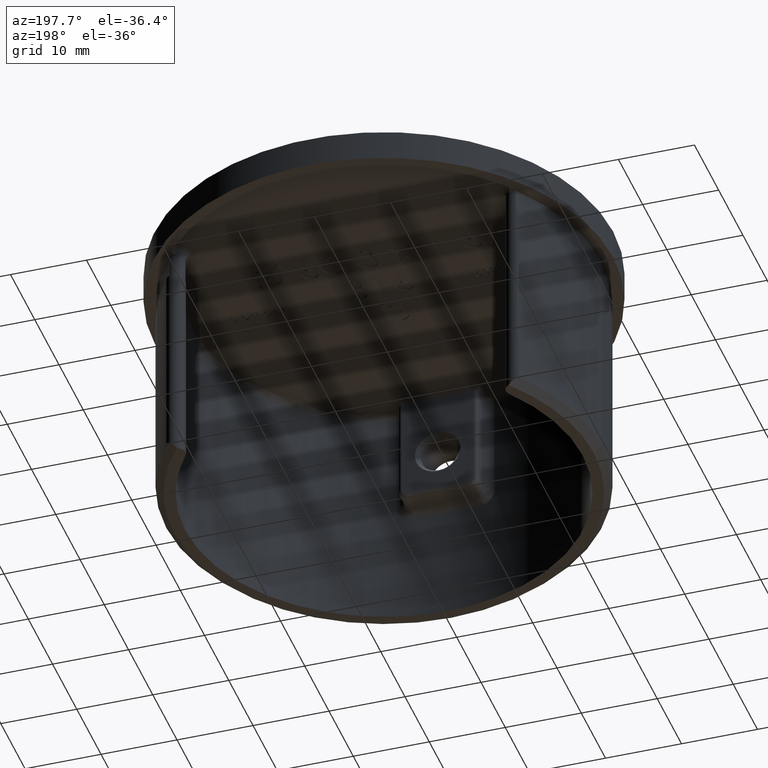
[diagram: clean part render]
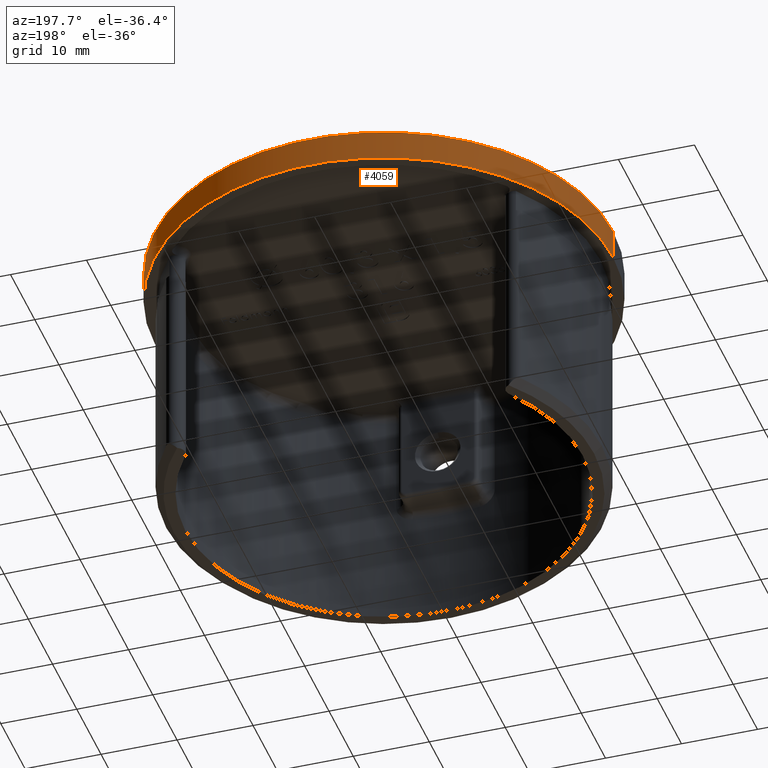
[diagram: same view with one face highlighted and labeled with its STEP entity id]
A machine part, auxiliary view. The second image highlights one B-rep face of the part: STEP entity #4059.
In plain terms, the highlighted cylindrical surface (partial cylindrical patch) has radius 30.15 mm, axis along (-0, -0, -1).
Its self-contained STEP definition (entity closure, byte-faithful):
#627 = EDGE_CURVE ( 'NONE', #13377, #5785, #5581, .T. ) ;
#941 = VERTEX_POINT ( 'NONE', #2209 ) ;
#2209 = CARTESIAN_POINT ( 'NONE',  ( 30.14999999999999858, 3.692310099429270397E-15, 0.000000000000000000 ) ) ;
#3050 = CYLINDRICAL_SURFACE ( 'NONE', #8650, 30.14999999999999858 ) ;
#3496 = CARTESIAN_POINT ( 'NONE',  ( -30.14999999999999858, 0.000000000000000000, 4.000000000000000000 ) ) ;
#3553 = EDGE_CURVE ( 'NONE', #15630, #941, #6722, .T. ) ;
#3639 = CIRCLE ( 'NONE', #12667, 30.14999999999999858 ) ;
#4059 = ADVANCED_FACE ( 'NONE', ( #25355 ), #3050, .T. ) ;
#4258 = VECTOR ( 'NONE', #18877, 1000.000000000000000 ) ;
#4289 = CARTESIAN_POINT ( 'NONE',  ( -30.14999999999999858, 0.000000000000000000, 0.000000000000000000 ) ) ;
#5203 = CARTESIAN_POINT ( 'NONE',  ( 30.14999999999999858, 3.692310099429270397E-15, 4.000000000000000000 ) ) ;
#5581 = LINE ( 'NONE', #14531, #15955 ) ;
#5785 = VERTEX_POINT ( 'NONE', #4289 ) ;
#6160 = CARTESIAN_POINT ( 'NONE',  ( 30.14999999999999858, 3.692310099429270397E-15, 4.000000000000000000 ) ) ;
#6722 = LINE ( 'NONE', #5203, #4258 ) ;
#7071 = AXIS2_PLACEMENT_3D ( 'NONE', #18100, #10168, #16401 ) ;
#8650 = AXIS2_PLACEMENT_3D ( 'NONE', #16538, #20473, #8766 ) ;
#8766 = DIRECTION ( 'NONE',  ( -1.000000000000000000, 0.000000000000000000, 0.000000000000000000 ) ) ;
#9542 = DIRECTION ( 'NONE',  ( 1.000000000000000000, 0.000000000000000000, 0.000000000000000000 ) ) ;
#10168 = DIRECTION ( 'NONE',  ( 0.000000000000000000, 0.000000000000000000, 1.000000000000000000 ) ) ;
#11350 = ORIENTED_EDGE ( 'NONE', *, *, #24509, .T. ) ;
#12479 = DIRECTION ( 'NONE',  ( -0.000000000000000000, -0.000000000000000000, -1.000000000000000000 ) ) ;
#12667 = AXIS2_PLACEMENT_3D ( 'NONE', #21502, #17401, #9542 ) ;
#13377 = VERTEX_POINT ( 'NONE', #3496 ) ;
#14531 = CARTESIAN_POINT ( 'NONE',  ( -30.14999999999999858, 0.000000000000000000, 4.000000000000000000 ) ) ;
#15630 = VERTEX_POINT ( 'NONE', #6160 ) ;
#15955 = VECTOR ( 'NONE', #12479, 1000.000000000000000 ) ;
#16401 = DIRECTION ( 'NONE',  ( 1.000000000000000000, 0.000000000000000000, 0.000000000000000000 ) ) ;
#16538 = CARTESIAN_POINT ( 'NONE',  ( 0.000000000000000000, 0.000000000000000000, 4.000000000000000000 ) ) ;
#16657 = ORIENTED_EDGE ( 'NONE', *, *, #3553, .T. ) ;
#16802 = CIRCLE ( 'NONE', #7071, 30.14999999999999858 ) ;
#17401 = DIRECTION ( 'NONE',  ( 0.000000000000000000, 0.000000000000000000, 1.000000000000000000 ) ) ;
#18100 = CARTESIAN_POINT ( 'NONE',  ( 0.000000000000000000, 0.000000000000000000, 4.000000000000000000 ) ) ;
#18703 = ORIENTED_EDGE ( 'NONE', *, *, #22633, .F. ) ;
#18877 = DIRECTION ( 'NONE',  ( -0.000000000000000000, -0.000000000000000000, -1.000000000000000000 ) ) ;
#20290 = ORIENTED_EDGE ( 'NONE', *, *, #627, .F. ) ;
#20473 = DIRECTION ( 'NONE',  ( -0.000000000000000000, -0.000000000000000000, -1.000000000000000000 ) ) ;
#21502 = CARTESIAN_POINT ( 'NONE',  ( 0.000000000000000000, 0.000000000000000000, 0.000000000000000000 ) ) ;
#22172 = EDGE_LOOP ( 'NONE', ( #18703, #16657, #11350, #20290 ) ) ;
#22633 = EDGE_CURVE ( 'NONE', #15630, #13377, #16802, .T. ) ;
#24509 = EDGE_CURVE ( 'NONE', #941, #5785, #3639, .T. ) ;
#25355 = FACE_OUTER_BOUND ( 'NONE', #22172, .T. ) ;